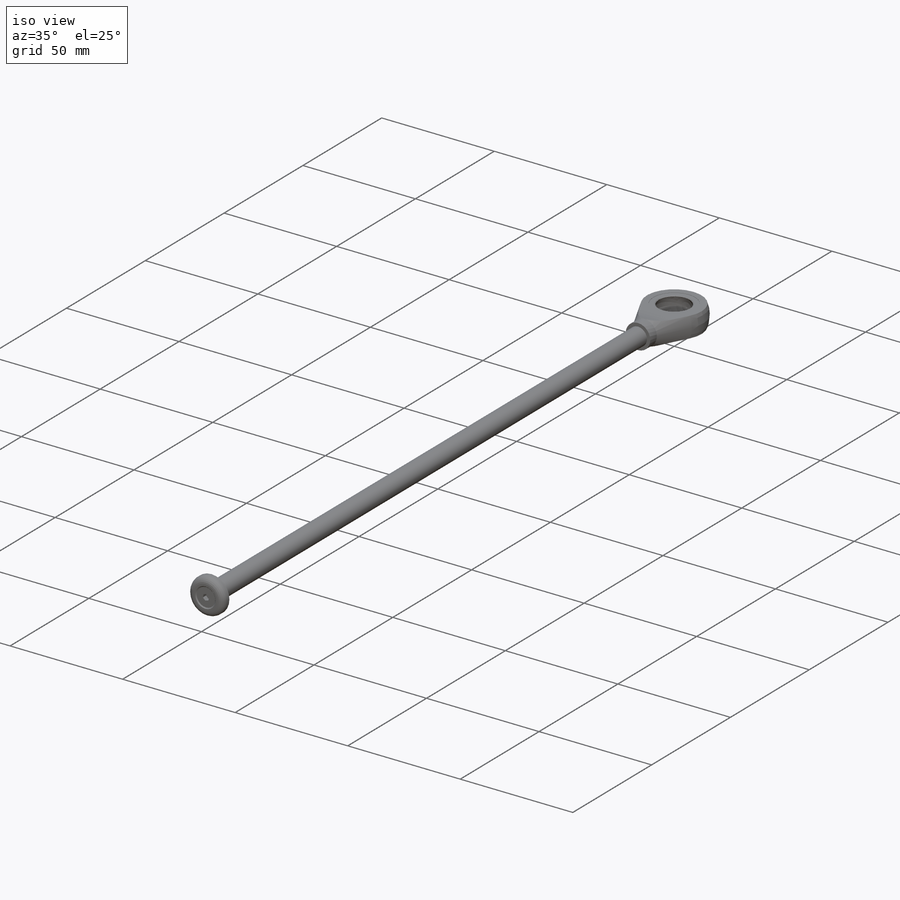
[diagram: iso view]
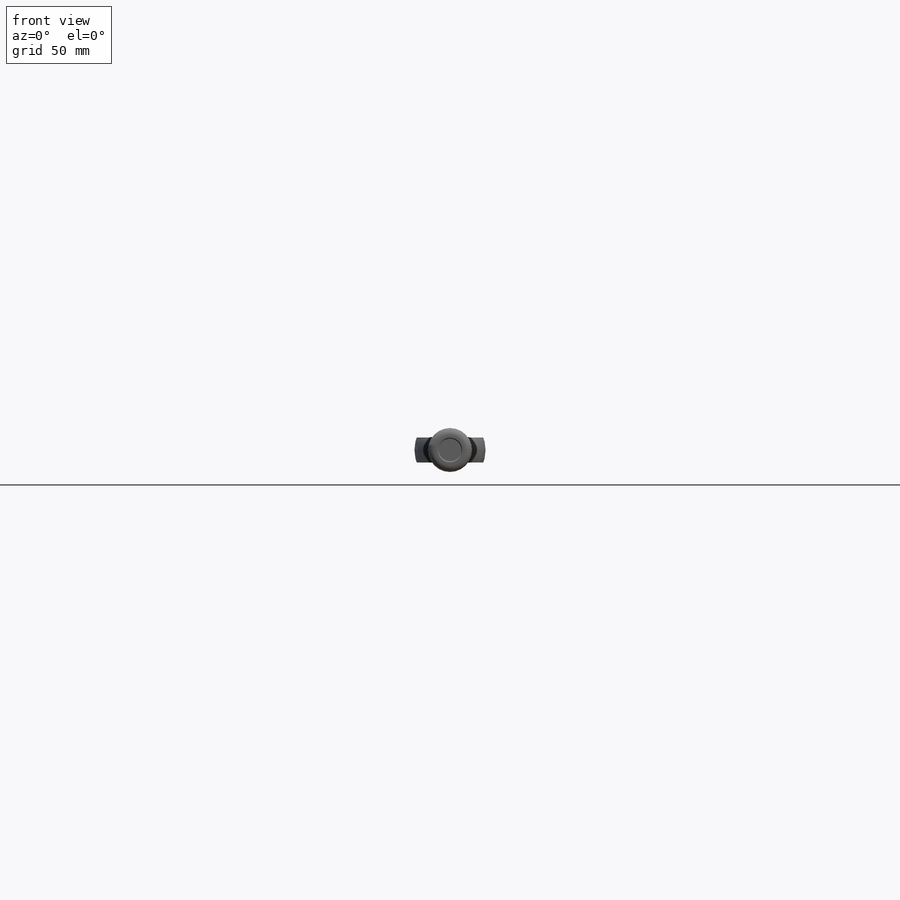
[diagram: front view]
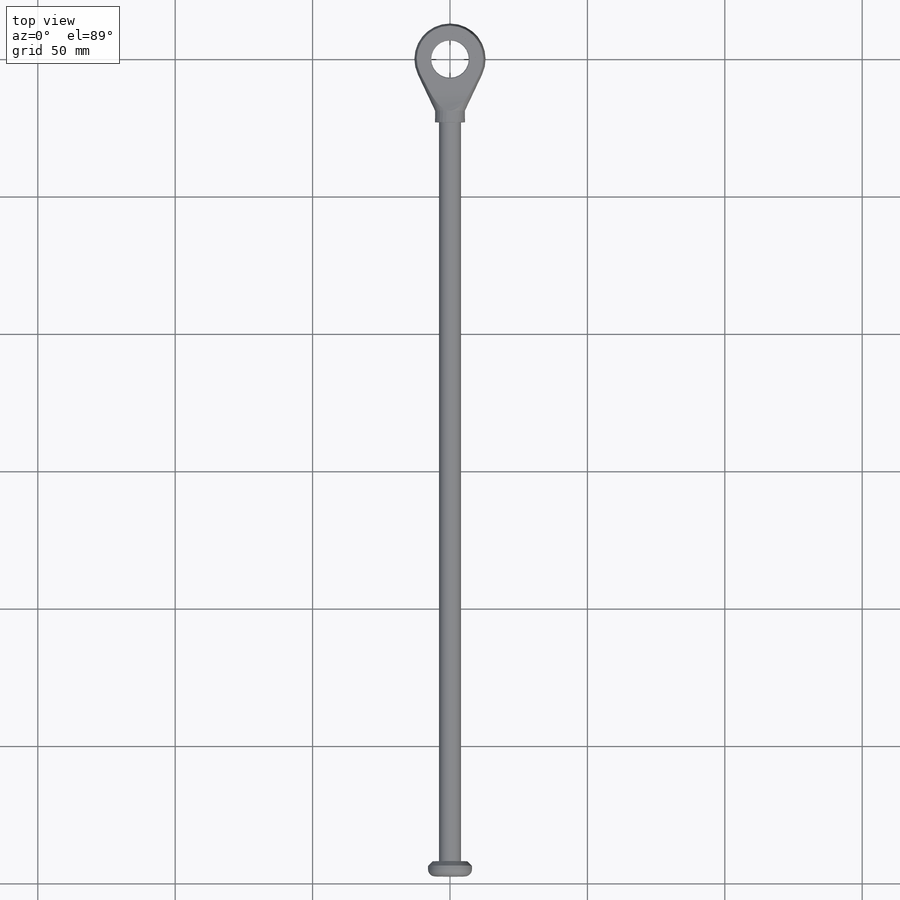
[diagram: top view]
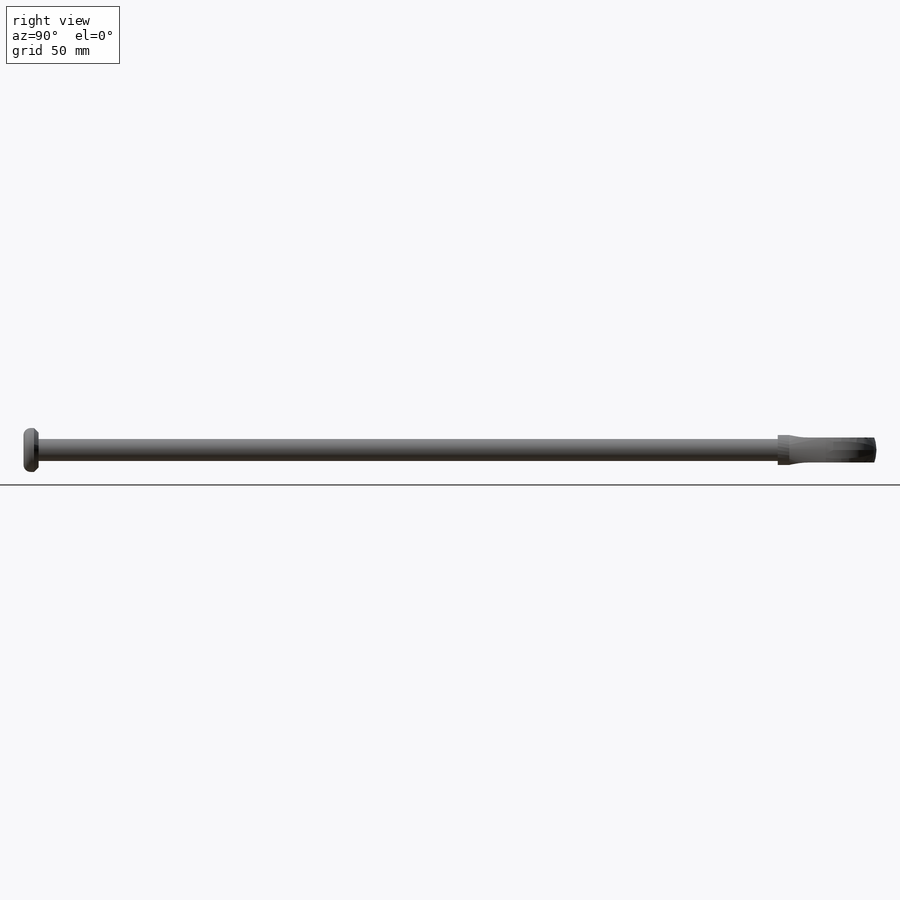
[diagram: right view]
SOLIDWORKS PART (.sldprt)
format: sldprt  version: not decoded by parser v0  size: 308,736 bytes
history: native  units: mm
features: sketch x4, cut_extrude x3, material x1, revolve x1, mirror x1, chamfer x1 (+11 scaffold rows collapsed)
feature tree (22):
  scaffold x11  (default folders/planes/origin — collapsed)
  material  "Material <not specified>"
  sketch  "Sketch1"  dims[c1.D1=25.9mm c1.D6=16.0mm c1.D2=10.9mm c1.D3=8.0mm c1.D4=23.0mm c1.D5=4.2mm c1.D7=269.0mm c1.D8=16.0mm c1.D9=12.7mm c1.D10=2.35mm c2.D10=45.0deg c2.D11=5.5mm c2.D12=9.0mm c2.D13=0.4mm c2.D14=1.25mm]
  revolve  "Revolve1"  Angle=360deg
  sketch  "Sketch2"  dims[D1=2.5mm]
  cut_extrude  "Extrude1"  Depth=2mm
  sketch  "Sketch3"  dims[D1=9.1mm D2=11.4mm D3=5.5mm]
  cut_extrude  "Extrude2"  [1 undecoded]
  sketch  "Sketch4"  dims[D1=18.6mm]
  cut_extrude  "Extrude3"  Depth=0.1mm
  mirror  "Mirror1"
  chamfer  "Chamfer1"  Distance=0.5mm Angle=45deg
decode coverage: 8 of 10 modeling features carry decoded parameters
note: 1 parameter value undecoded
note: suppression state not decoded; provenance and decode notes live in map.json
